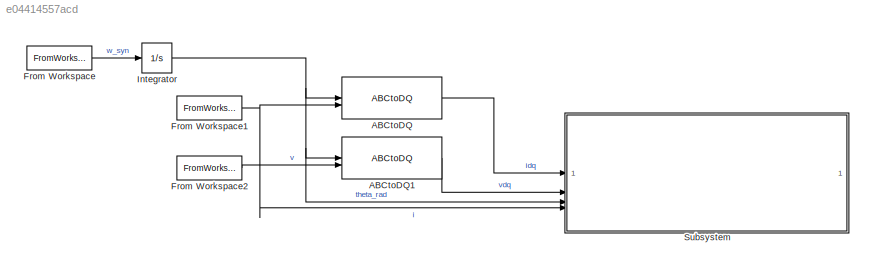
MODEL slx_e04414557acd
KIND model
CONFIG AbsTol = auto
CONFIG EnableMultiTasking = off
CONFIG FixedStep = auto
CONFIG MaxStep = simu.dt
CONFIG MinStep = auto
CONFIG RelTol = 1e-3
CONFIG SampleTimeConstraint = Unconstrained
CONFIG SolverName = VariableStepAuto
CONFIG StartTime = 0.0
CONFIG StopTime = simu.endTime
BLOCK [Reference] ABCtoDQ  REF=WECSim_Lib_PTOSim/Electric/Direct Drive Linear Generator/ABCtoDQ
  SourceBlock = WECSim_Lib_PTOSim/Electric/Direct Drive Linear Generator/ABCtoDQ
  SourceType = SubSystem
BLOCK [Reference] ABCtoDQ1  REF=WECSim_Lib_PTOSim/Electric/Direct Drive Linear Generator/ABCtoDQ
  SourceBlock = WECSim_Lib_PTOSim/Electric/Direct Drive Linear Generator/ABCtoDQ
  SourceType = SubSystem
BLOCK [FromWorkspace] From Workspace
  VariableName = omega
BLOCK [FromWorkspace] From Workspace1
  VariableName = i_s
BLOCK [FromWorkspace] From Workspace2
  VariableName = v_s
BLOCK [Integrator] Integrator
  WrappedStateLowerValue = 0
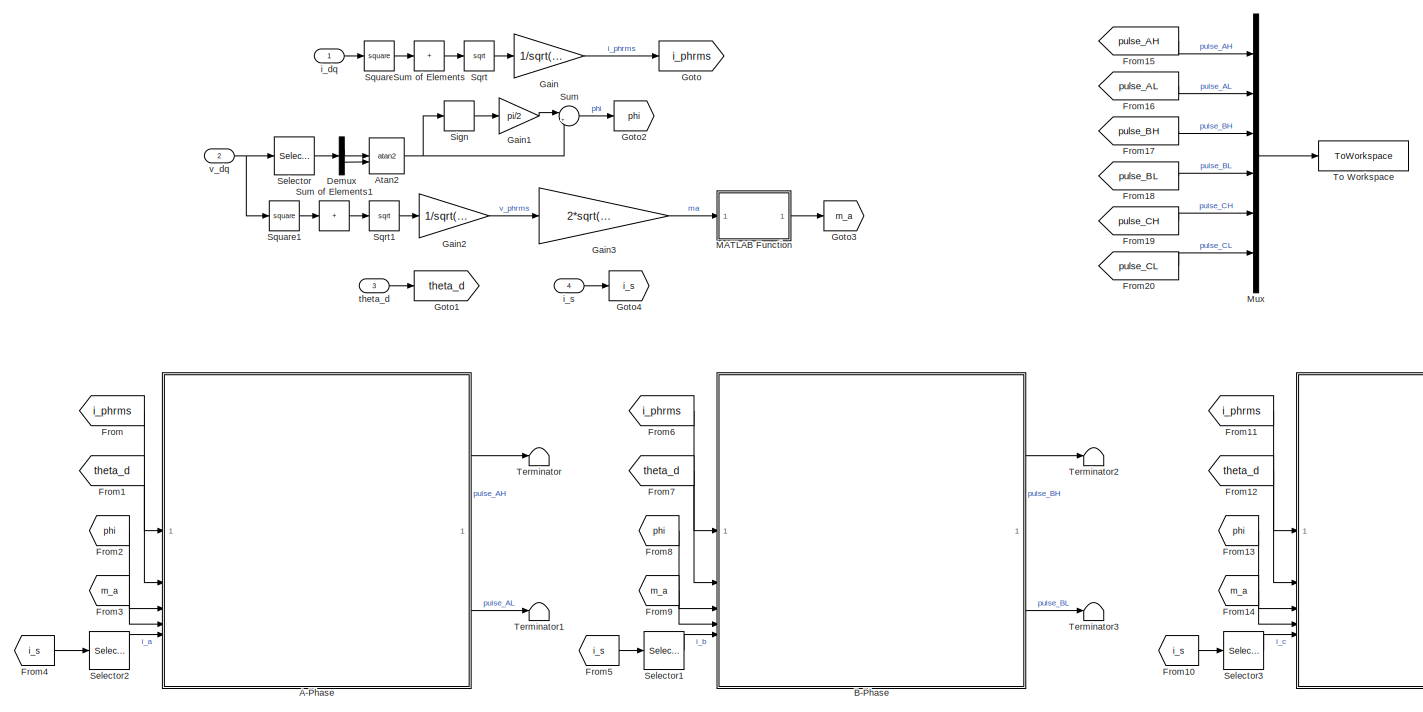
[diagram: Subsystem - part 1/2, most of the canvas]
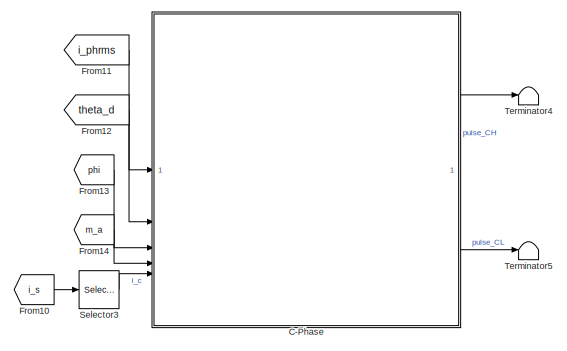
[diagram: Subsystem - part 2/2, bottom right region]
BLOCK [SubSystem] Subsystem
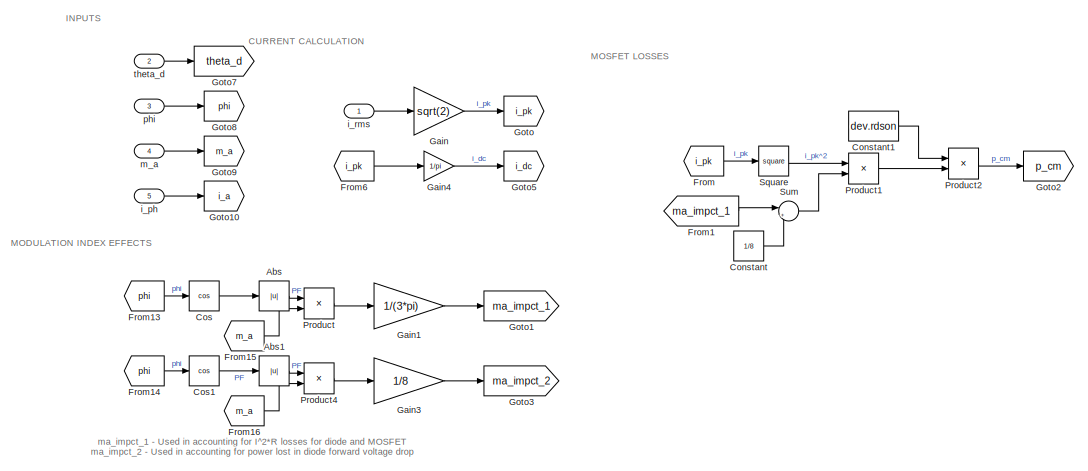
[diagram: Subsystem/A-Phase - part 1/2, middle left region]
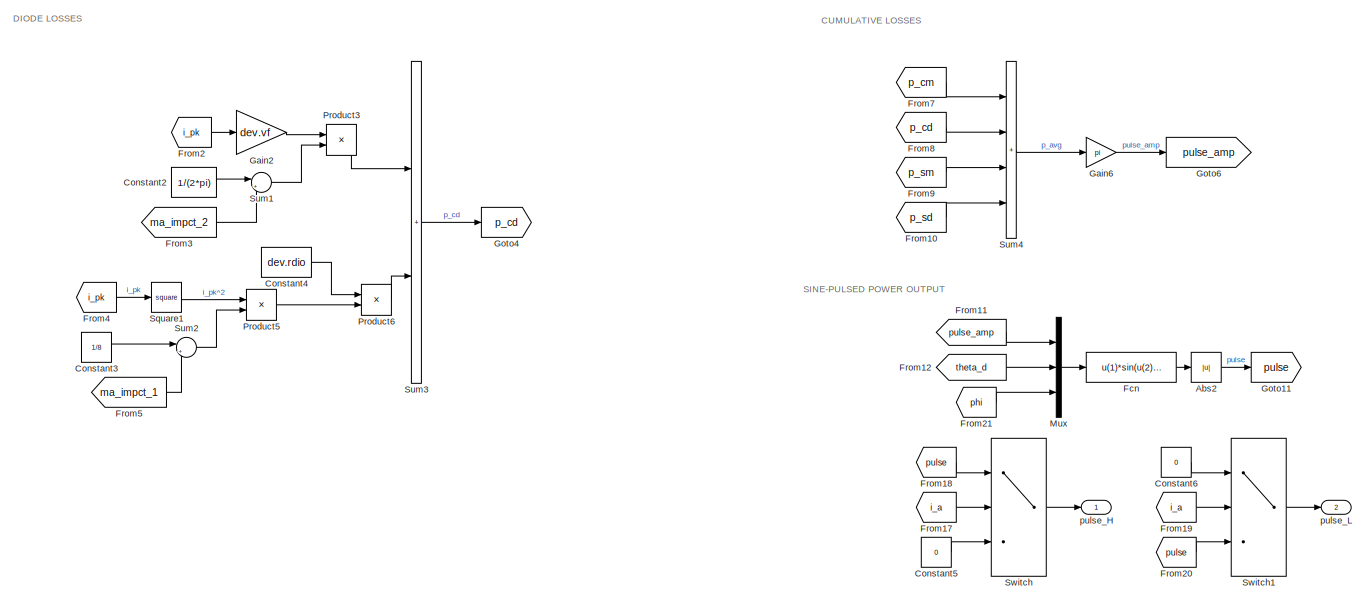
[diagram: Subsystem/A-Phase - part 2/2, right side, full height]
BLOCK [SubSystem] Subsystem/A-Phase
  AncestorBlock = MPModeling_MOSFETConv_lib/MOSFET 2L VSC/Device 1
BLOCK [Abs] Subsystem/A-Phase/Abs
  Commented = through
  SaturateOnIntegerOverflow = off
BLOCK [Abs] Subsystem/A-Phase/Abs1
  Commented = through
  SaturateOnIntegerOverflow = off
BLOCK [Abs] Subsystem/A-Phase/Abs2
  SaturateOnIntegerOverflow = off
BLOCK [Constant] Subsystem/A-Phase/Constant
  Value = 1/8
BLOCK [Constant] Subsystem/A-Phase/Constant1
  Value = dev.rdson
BLOCK [Constant] Subsystem/A-Phase/Constant2
  Value = 1/(2*pi)
BLOCK [Constant] Subsystem/A-Phase/Constant3
  Value = 1/8
BLOCK [Constant] Subsystem/A-Phase/Constant4
  Value = dev.rdio
BLOCK [Constant] Subsystem/A-Phase/Constant5
  Value = 0
BLOCK [Constant] Subsystem/A-Phase/Constant6
  Value = 0
BLOCK [Trigonometry] Subsystem/A-Phase/Cos
  Operator = cos
BLOCK [Trigonometry] Subsystem/A-Phase/Cos1
  Operator = cos
BLOCK [Fcn] Subsystem/A-Phase/Fcn
  Expr = u(1)*sin(u(2)+u(3))
BLOCK [From] Subsystem/A-Phase/From
  GotoTag = i_pk
BLOCK [From] Subsystem/A-Phase/From1
  GotoTag = ma_impct_1
BLOCK [From] Subsystem/A-Phase/From10
  GotoTag = p_sd
BLOCK [From] Subsystem/A-Phase/From11
  GotoTag = pulse_amp
BLOCK [From] Subsystem/A-Phase/From12
  GotoTag = theta_d
BLOCK [From] Subsystem/A-Phase/From13
  GotoTag = phi
BLOCK [From] Subsystem/A-Phase/From14
  GotoTag = phi
BLOCK [From] Subsystem/A-Phase/From15
  GotoTag = m_a
BLOCK [From] Subsystem/A-Phase/From16
  GotoTag = m_a
BLOCK [From] Subsystem/A-Phase/From17
  GotoTag = i_a
BLOCK [From] Subsystem/A-Phase/From18
  GotoTag = pulse
BLOCK [From] Subsystem/A-Phase/From19
  GotoTag = i_a
BLOCK [From] Subsystem/A-Phase/From2
  GotoTag = i_pk
BLOCK [From] Subsystem/A-Phase/From20
  GotoTag = pulse
BLOCK [From] Subsystem/A-Phase/From21
  GotoTag = phi
BLOCK [From] Subsystem/A-Phase/From3
  GotoTag = ma_impct_2
BLOCK [From] Subsystem/A-Phase/From4
  GotoTag = i_pk
BLOCK [From] Subsystem/A-Phase/From5
  GotoTag = ma_impct_1
BLOCK [From] Subsystem/A-Phase/From6
  GotoTag = i_pk
BLOCK [From] Subsystem/A-Phase/From7
  GotoTag = p_cm
BLOCK [From] Subsystem/A-Phase/From8
  GotoTag = p_cd
BLOCK [From] Subsystem/A-Phase/From9
  GotoTag = p_sm
BLOCK [Gain] Subsystem/A-Phase/Gain
  Gain = sqrt(2)
BLOCK [Gain] Subsystem/A-Phase/Gain1
  Gain = 1/(3*pi)
BLOCK [Gain] Subsystem/A-Phase/Gain2
  Gain = dev.vf
BLOCK [Gain] Subsystem/A-Phase/Gain3
  Gain = 1/8
BLOCK [Gain] Subsystem/A-Phase/Gain4
  Gain = 1/pi
BLOCK [Gain] Subsystem/A-Phase/Gain6
  Gain = pi
BLOCK [Goto] Subsystem/A-Phase/Goto
  GotoTag = i_pk
BLOCK [Goto] Subsystem/A-Phase/Goto1
  GotoTag = ma_impct_1
BLOCK [Goto] Subsystem/A-Phase/Goto10
  GotoTag = i_a
BLOCK [Goto] Subsystem/A-Phase/Goto11
  GotoTag = pulse
BLOCK [Goto] Subsystem/A-Phase/Goto2
  GotoTag = p_cm
BLOCK [Goto] Subsystem/A-Phase/Goto3
  GotoTag = ma_impct_2
BLOCK [Goto] Subsystem/A-Phase/Goto4
  GotoTag = p_cd
BLOCK [Goto] Subsystem/A-Phase/Goto5
  GotoTag = i_dc
BLOCK [Goto] Subsystem/A-Phase/Goto6
  GotoTag = pulse_amp
BLOCK [Goto] Subsystem/A-Phase/Goto7
  GotoTag = theta_d
BLOCK [Goto] Subsystem/A-Phase/Goto8
  GotoTag = phi
BLOCK [Goto] Subsystem/A-Phase/Goto9
  GotoTag = m_a
BLOCK [Mux] Subsystem/A-Phase/Mux
  DisplayOption = bar
  Inputs = 3
BLOCK [Product] Subsystem/A-Phase/Product
BLOCK [Product] Subsystem/A-Phase/Product1
BLOCK [Product] Subsystem/A-Phase/Product2
BLOCK [Product] Subsystem/A-Phase/Product3
BLOCK [Product] Subsystem/A-Phase/Product4
BLOCK [Product] Subsystem/A-Phase/Product5
BLOCK [Product] Subsystem/A-Phase/Product6
BLOCK [Math] Subsystem/A-Phase/Square
  Operator = square
BLOCK [Math] Subsystem/A-Phase/Square1
  Operator = square
BLOCK [Sum] Subsystem/A-Phase/Sum
  Inputs = |++
BLOCK [Sum] Subsystem/A-Phase/Sum1
  Inputs = |+-
BLOCK [Sum] Subsystem/A-Phase/Sum2
  Inputs = |+-
BLOCK [Sum] Subsystem/A-Phase/Sum3
  IconShape = rectangular
BLOCK [Sum] Subsystem/A-Phase/Sum4
  IconShape = rectangular
  Inputs = ++++
BLOCK [Switch] Subsystem/A-Phase/Switch
  Criteria = u2 > Threshold
  InputSameDT = off
  SaturateOnIntegerOverflow = off
BLOCK [Switch] Subsystem/A-Phase/Switch1
  Criteria = u2 > Threshold
  InputSameDT = off
  SaturateOnIntegerOverflow = off
BLOCK [Inport] Subsystem/A-Phase/i_ph
  Port = 5
BLOCK [Inport] Subsystem/A-Phase/i_rms
BLOCK [Inport] Subsystem/A-Phase/m_a
  Port = 4
BLOCK [Inport] Subsystem/A-Phase/phi
  Port = 3
BLOCK [Outport] Subsystem/A-Phase/pulse_H
BLOCK [Outport] Subsystem/A-Phase/pulse_L
  Port = 2
BLOCK [Inport] Subsystem/A-Phase/theta_d
  Port = 2
BLOCK [Trigonometry] Subsystem/Atan2
  Operator = atan2
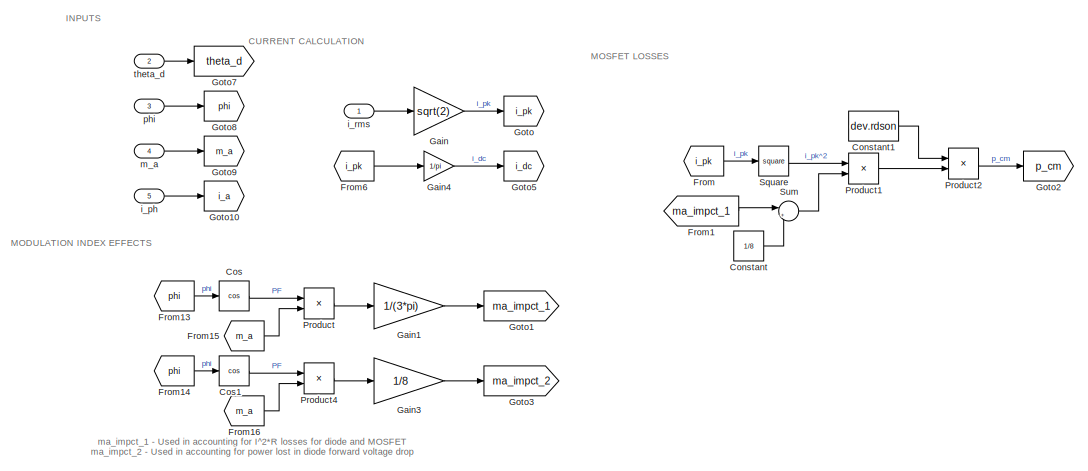
[diagram: Subsystem/B-Phase - part 1/2, middle left region]
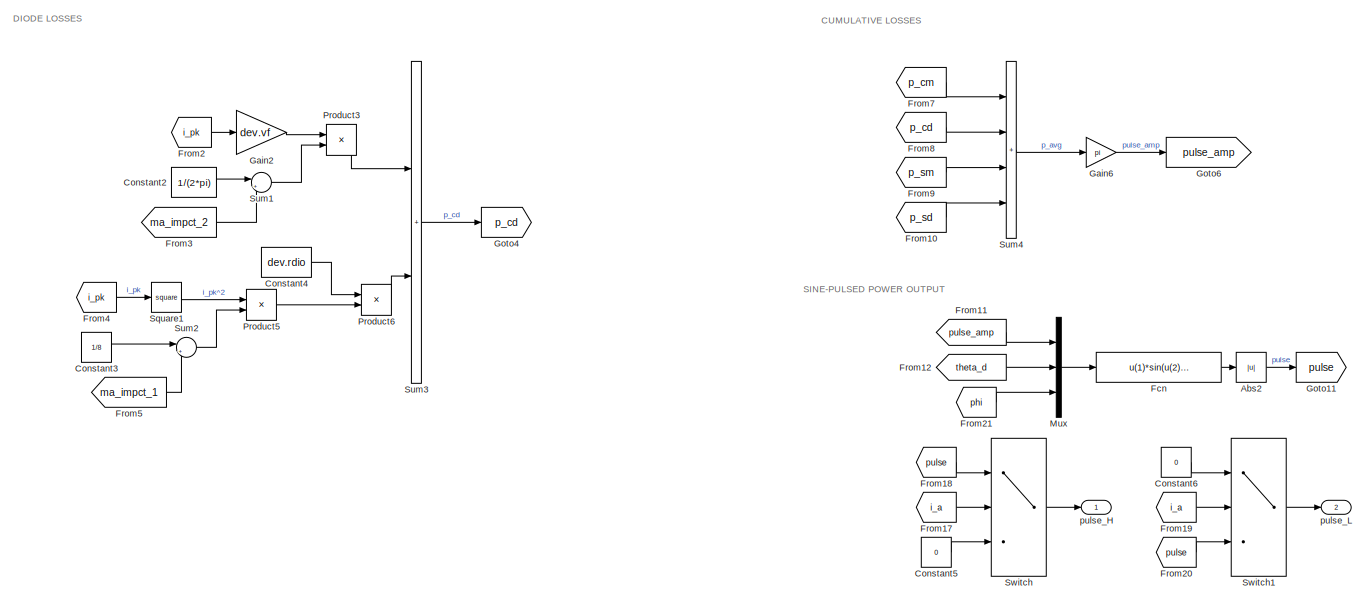
[diagram: Subsystem/B-Phase - part 2/2, right side, full height]
BLOCK [SubSystem] Subsystem/B-Phase
  AncestorBlock = MPModeling_MOSFETConv_lib/MOSFET 2L VSC/Device 1
BLOCK [Abs] Subsystem/B-Phase/Abs2
  SaturateOnIntegerOverflow = off
BLOCK [Constant] Subsystem/B-Phase/Constant
  Value = 1/8
BLOCK [Constant] Subsystem/B-Phase/Constant1
  Value = dev.rdson
BLOCK [Constant] Subsystem/B-Phase/Constant2
  Value = 1/(2*pi)
BLOCK [Constant] Subsystem/B-Phase/Constant3
  Value = 1/8
BLOCK [Constant] Subsystem/B-Phase/Constant4
  Value = dev.rdio
BLOCK [Constant] Subsystem/B-Phase/Constant5
  Value = 0
BLOCK [Constant] Subsystem/B-Phase/Constant6
  Value = 0
BLOCK [Trigonometry] Subsystem/B-Phase/Cos
  Operator = cos
BLOCK [Trigonometry] Subsystem/B-Phase/Cos1
  Operator = cos
BLOCK [Fcn] Subsystem/B-Phase/Fcn
  Expr = u(1)*sin(u(2)-2*pi/3+u(3))
BLOCK [From] Subsystem/B-Phase/From
  GotoTag = i_pk
BLOCK [From] Subsystem/B-Phase/From1
  GotoTag = ma_impct_1
BLOCK [From] Subsystem/B-Phase/From10
  GotoTag = p_sd
BLOCK [From] Subsystem/B-Phase/From11
  GotoTag = pulse_amp
BLOCK [From] Subsystem/B-Phase/From12
  GotoTag = theta_d
BLOCK [From] Subsystem/B-Phase/From13
  GotoTag = phi
BLOCK [From] Subsystem/B-Phase/From14
  GotoTag = phi
BLOCK [From] Subsystem/B-Phase/From15
  GotoTag = m_a
BLOCK [From] Subsystem/B-Phase/From16
  GotoTag = m_a
BLOCK [From] Subsystem/B-Phase/From17
  GotoTag = i_a
BLOCK [From] Subsystem/B-Phase/From18
  GotoTag = pulse
BLOCK [From] Subsystem/B-Phase/From19
  GotoTag = i_a
BLOCK [From] Subsystem/B-Phase/From2
  GotoTag = i_pk
BLOCK [From] Subsystem/B-Phase/From20
  GotoTag = pulse
BLOCK [From] Subsystem/B-Phase/From21
  GotoTag = phi
BLOCK [From] Subsystem/B-Phase/From3
  GotoTag = ma_impct_2
BLOCK [From] Subsystem/B-Phase/From4
  GotoTag = i_pk
BLOCK [From] Subsystem/B-Phase/From5
  GotoTag = ma_impct_1
BLOCK [From] Subsystem/B-Phase/From6
  GotoTag = i_pk
BLOCK [From] Subsystem/B-Phase/From7
  GotoTag = p_cm
BLOCK [From] Subsystem/B-Phase/From8
  GotoTag = p_cd
BLOCK [From] Subsystem/B-Phase/From9
  GotoTag = p_sm
BLOCK [Gain] Subsystem/B-Phase/Gain
  Gain = sqrt(2)
BLOCK [Gain] Subsystem/B-Phase/Gain1
  Gain = 1/(3*pi)
BLOCK [Gain] Subsystem/B-Phase/Gain2
  Gain = dev.vf
BLOCK [Gain] Subsystem/B-Phase/Gain3
  Gain = 1/8
BLOCK [Gain] Subsystem/B-Phase/Gain4
  Gain = 1/pi
BLOCK [Gain] Subsystem/B-Phase/Gain6
  Gain = pi
BLOCK [Goto] Subsystem/B-Phase/Goto
  GotoTag = i_pk
BLOCK [Goto] Subsystem/B-Phase/Goto1
  GotoTag = ma_impct_1
BLOCK [Goto] Subsystem/B-Phase/Goto10
  GotoTag = i_a
BLOCK [Goto] Subsystem/B-Phase/Goto11
  GotoTag = pulse
BLOCK [Goto] Subsystem/B-Phase/Goto2
  GotoTag = p_cm
BLOCK [Goto] Subsystem/B-Phase/Goto3
  GotoTag = ma_impct_2
BLOCK [Goto] Subsystem/B-Phase/Goto4
  GotoTag = p_cd
BLOCK [Goto] Subsystem/B-Phase/Goto5
  GotoTag = i_dc
BLOCK [Goto] Subsystem/B-Phase/Goto6
  GotoTag = pulse_amp
BLOCK [Goto] Subsystem/B-Phase/Goto7
  GotoTag = theta_d
BLOCK [Goto] Subsystem/B-Phase/Goto8
  GotoTag = phi
BLOCK [Goto] Subsystem/B-Phase/Goto9
  GotoTag = m_a
BLOCK [Mux] Subsystem/B-Phase/Mux
  DisplayOption = bar
  Inputs = 3
BLOCK [Product] Subsystem/B-Phase/Product
BLOCK [Product] Subsystem/B-Phase/Product1
BLOCK [Product] Subsystem/B-Phase/Product2
BLOCK [Product] Subsystem/B-Phase/Product3
BLOCK [Product] Subsystem/B-Phase/Product4
BLOCK [Product] Subsystem/B-Phase/Product5
BLOCK [Product] Subsystem/B-Phase/Product6
BLOCK [Math] Subsystem/B-Phase/Square
  Operator = square
BLOCK [Math] Subsystem/B-Phase/Square1
  Operator = square
BLOCK [Sum] Subsystem/B-Phase/Sum
  Inputs = |++
BLOCK [Sum] Subsystem/B-Phase/Sum1
  Inputs = |+-
BLOCK [Sum] Subsystem/B-Phase/Sum2
  Inputs = |+-
BLOCK [Sum] Subsystem/B-Phase/Sum3
  IconShape = rectangular
BLOCK [Sum] Subsystem/B-Phase/Sum4
  IconShape = rectangular
  Inputs = ++++
BLOCK [Switch] Subsystem/B-Phase/Switch
  Criteria = u2 > Threshold
  InputSameDT = off
  SaturateOnIntegerOverflow = off
BLOCK [Switch] Subsystem/B-Phase/Switch1
  Criteria = u2 > Threshold
  InputSameDT = off
  SaturateOnIntegerOverflow = off
BLOCK [Inport] Subsystem/B-Phase/i_ph
  Port = 5
BLOCK [Inport] Subsystem/B-Phase/i_rms
BLOCK [Inport] Subsystem/B-Phase/m_a
  Port = 4
BLOCK [Inport] Subsystem/B-Phase/phi
  Port = 3
BLOCK [Outport] Subsystem/B-Phase/pulse_H
BLOCK [Outport] Subsystem/B-Phase/pulse_L
  Port = 2
BLOCK [Inport] Subsystem/B-Phase/theta_d
  Port = 2
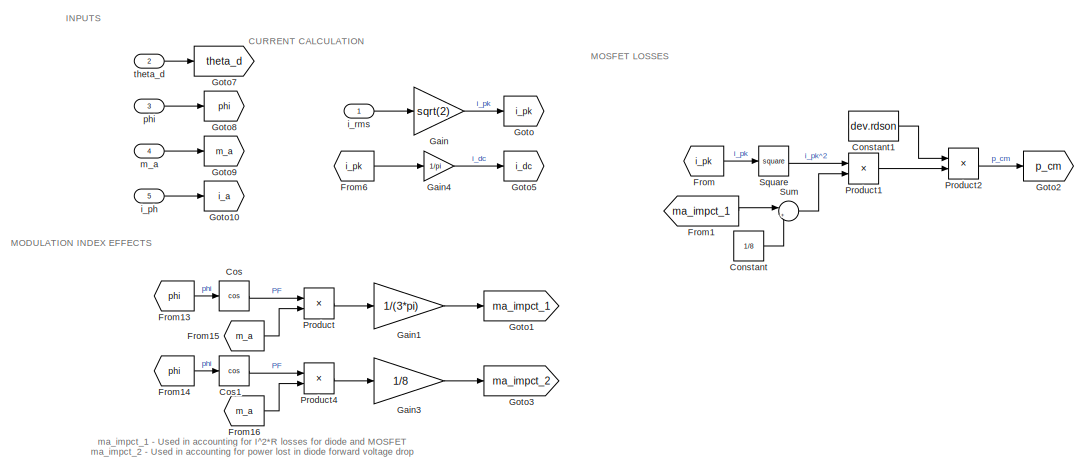
[diagram: Subsystem/C-Phase - part 1/2, middle left region]
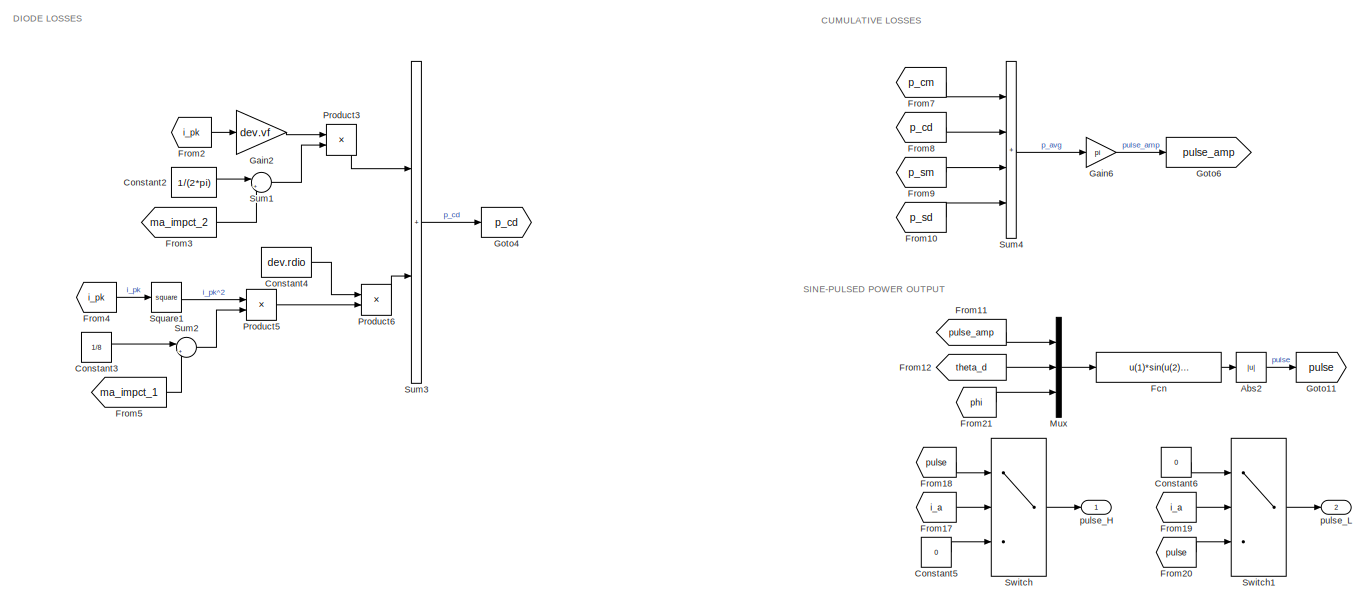
[diagram: Subsystem/C-Phase - part 2/2, right side, full height]
BLOCK [SubSystem] Subsystem/C-Phase
  AncestorBlock = MPModeling_MOSFETConv_lib/MOSFET 2L VSC/Device 1
BLOCK [Abs] Subsystem/C-Phase/Abs2
  SaturateOnIntegerOverflow = off
BLOCK [Constant] Subsystem/C-Phase/Constant
  Value = 1/8
BLOCK [Constant] Subsystem/C-Phase/Constant1
  Value = dev.rdson
BLOCK [Constant] Subsystem/C-Phase/Constant2
  Value = 1/(2*pi)
BLOCK [Constant] Subsystem/C-Phase/Constant3
  Value = 1/8
BLOCK [Constant] Subsystem/C-Phase/Constant4
  Value = dev.rdio
BLOCK [Constant] Subsystem/C-Phase/Constant5
  Value = 0
BLOCK [Constant] Subsystem/C-Phase/Constant6
  Value = 0
BLOCK [Trigonometry] Subsystem/C-Phase/Cos
  Operator = cos
BLOCK [Trigonometry] Subsystem/C-Phase/Cos1
  Operator = cos
BLOCK [Fcn] Subsystem/C-Phase/Fcn
  Expr = u(1)*sin(u(2)+2*pi/3+u(3))
BLOCK [From] Subsystem/C-Phase/From
  GotoTag = i_pk
BLOCK [From] Subsystem/C-Phase/From1
  GotoTag = ma_impct_1
BLOCK [From] Subsystem/C-Phase/From10
  GotoTag = p_sd
BLOCK [From] Subsystem/C-Phase/From11
  GotoTag = pulse_amp
BLOCK [From] Subsystem/C-Phase/From12
  GotoTag = theta_d
BLOCK [From] Subsystem/C-Phase/From13
  GotoTag = phi
BLOCK [From] Subsystem/C-Phase/From14
  GotoTag = phi
BLOCK [From] Subsystem/C-Phase/From15
  GotoTag = m_a
BLOCK [From] Subsystem/C-Phase/From16
  GotoTag = m_a
BLOCK [From] Subsystem/C-Phase/From17
  GotoTag = i_a
BLOCK [From] Subsystem/C-Phase/From18
  GotoTag = pulse
BLOCK [From] Subsystem/C-Phase/From19
  GotoTag = i_a
BLOCK [From] Subsystem/C-Phase/From2
  GotoTag = i_pk
BLOCK [From] Subsystem/C-Phase/From20
  GotoTag = pulse
BLOCK [From] Subsystem/C-Phase/From21
  GotoTag = phi
BLOCK [From] Subsystem/C-Phase/From3
  GotoTag = ma_impct_2
BLOCK [From] Subsystem/C-Phase/From4
  GotoTag = i_pk
BLOCK [From] Subsystem/C-Phase/From5
  GotoTag = ma_impct_1
BLOCK [From] Subsystem/C-Phase/From6
  GotoTag = i_pk
BLOCK [From] Subsystem/C-Phase/From7
  GotoTag = p_cm
BLOCK [From] Subsystem/C-Phase/From8
  GotoTag = p_cd
BLOCK [From] Subsystem/C-Phase/From9
  GotoTag = p_sm
BLOCK [Gain] Subsystem/C-Phase/Gain
  Gain = sqrt(2)
BLOCK [Gain] Subsystem/C-Phase/Gain1
  Gain = 1/(3*pi)
BLOCK [Gain] Subsystem/C-Phase/Gain2
  Gain = dev.vf
BLOCK [Gain] Subsystem/C-Phase/Gain3
  Gain = 1/8
BLOCK [Gain] Subsystem/C-Phase/Gain4
  Gain = 1/pi
BLOCK [Gain] Subsystem/C-Phase/Gain6
  Gain = pi
BLOCK [Goto] Subsystem/C-Phase/Goto
  GotoTag = i_pk
BLOCK [Goto] Subsystem/C-Phase/Goto1
  GotoTag = ma_impct_1
BLOCK [Goto] Subsystem/C-Phase/Goto10
  GotoTag = i_a
BLOCK [Goto] Subsystem/C-Phase/Goto11
  GotoTag = pulse
BLOCK [Goto] Subsystem/C-Phase/Goto2
  GotoTag = p_cm
BLOCK [Goto] Subsystem/C-Phase/Goto3
  GotoTag = ma_impct_2
BLOCK [Goto] Subsystem/C-Phase/Goto4
  GotoTag = p_cd
BLOCK [Goto] Subsystem/C-Phase/Goto5
  GotoTag = i_dc
BLOCK [Goto] Subsystem/C-Phase/Goto6
  GotoTag = pulse_amp
BLOCK [Goto] Subsystem/C-Phase/Goto7
  GotoTag = theta_d
BLOCK [Goto] Subsystem/C-Phase/Goto8
  GotoTag = phi
BLOCK [Goto] Subsystem/C-Phase/Goto9
  GotoTag = m_a
BLOCK [Mux] Subsystem/C-Phase/Mux
  DisplayOption = bar
  Inputs = 3
BLOCK [Product] Subsystem/C-Phase/Product
BLOCK [Product] Subsystem/C-Phase/Product1
BLOCK [Product] Subsystem/C-Phase/Product2
BLOCK [Product] Subsystem/C-Phase/Product3
BLOCK [Product] Subsystem/C-Phase/Product4
BLOCK [Product] Subsystem/C-Phase/Product5
BLOCK [Product] Subsystem/C-Phase/Product6
BLOCK [Math] Subsystem/C-Phase/Square
  Operator = square
BLOCK [Math] Subsystem/C-Phase/Square1
  Operator = square
BLOCK [Sum] Subsystem/C-Phase/Sum
  Inputs = |++
BLOCK [Sum] Subsystem/C-Phase/Sum1
  Inputs = |+-
BLOCK [Sum] Subsystem/C-Phase/Sum2
  Inputs = |+-
BLOCK [Sum] Subsystem/C-Phase/Sum3
  IconShape = rectangular
BLOCK [Sum] Subsystem/C-Phase/Sum4
  IconShape = rectangular
  Inputs = ++++
BLOCK [Switch] Subsystem/C-Phase/Switch
  Criteria = u2 > Threshold
  InputSameDT = off
  SaturateOnIntegerOverflow = off
BLOCK [Switch] Subsystem/C-Phase/Switch1
  Criteria = u2 > Threshold
  InputSameDT = off
  SaturateOnIntegerOverflow = off
BLOCK [Inport] Subsystem/C-Phase/i_ph
  Port = 5
BLOCK [Inport] Subsystem/C-Phase/i_rms
BLOCK [Inport] Subsystem/C-Phase/m_a
  Port = 4
BLOCK [Inport] Subsystem/C-Phase/phi
  Port = 3
BLOCK [Outport] Subsystem/C-Phase/pulse_H
BLOCK [Outport] Subsystem/C-Phase/pulse_L
  Port = 2
BLOCK [Inport] Subsystem/C-Phase/theta_d
  Port = 2
BLOCK [Demux] Subsystem/Demux
  Outputs = 2
BLOCK [From] Subsystem/From
  GotoTag = i_phrms
BLOCK [From] Subsystem/From1
  GotoTag = theta_d
BLOCK [From] Subsystem/From10
  GotoTag = i_s
BLOCK [From] Subsystem/From11
  GotoTag = i_phrms
BLOCK [From] Subsystem/From12
  GotoTag = theta_d
BLOCK [From] Subsystem/From13
  GotoTag = phi
BLOCK [From] Subsystem/From14
  GotoTag = m_a
BLOCK [From] Subsystem/From15
  Commented = on
  GotoTag = pulse_AH
BLOCK [From] Subsystem/From16
  Commented = on
  GotoTag = pulse_AL
BLOCK [From] Subsystem/From17
  Commented = on
  GotoTag = pulse_BH
BLOCK [From] Subsystem/From18
  Commented = on
  GotoTag = pulse_BL
BLOCK [From] Subsystem/From19
  Commented = on
  GotoTag = pulse_CH
BLOCK [From] Subsystem/From2
  GotoTag = phi
BLOCK [From] Subsystem/From20
  Commented = on
  GotoTag = pulse_CL
BLOCK [From] Subsystem/From3
  GotoTag = m_a
BLOCK [From] Subsystem/From4
  GotoTag = i_s
BLOCK [From] Subsystem/From5
  GotoTag = i_s
BLOCK [From] Subsystem/From6
  GotoTag = i_phrms
BLOCK [From] Subsystem/From7
  GotoTag = theta_d
BLOCK [From] Subsystem/From8
  GotoTag = phi
BLOCK [From] Subsystem/From9
  GotoTag = m_a
BLOCK [Gain] Subsystem/Gain
  Gain = 1/sqrt(3)
BLOCK [Gain] Subsystem/Gain1
  Gain = pi/2
BLOCK [Gain] Subsystem/Gain2
  Gain = 1/sqrt(3)
BLOCK [Gain] Subsystem/Gain3
  Gain = 2*sqrt(2)/conv.vdc
BLOCK [Goto] Subsystem/Goto
  GotoTag = i_phrms
BLOCK [Goto] Subsystem/Goto1
  GotoTag = theta_d
BLOCK [Goto] Subsystem/Goto2
  GotoTag = phi
BLOCK [Goto] Subsystem/Goto3
  GotoTag = m_a
BLOCK [Goto] Subsystem/Goto4
  GotoTag = i_s
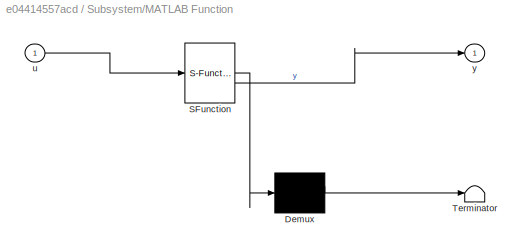
BLOCK [SubSystem] Subsystem/MATLAB Function
  ErrorFcn = Stateflow.Translate.translate
  LibrarySourceBlock = simulink/User-Defined\nFunctions/MATLAB Function
  PermitHierarchicalResolution = ExplicitOnly
  SFBlockType = MATLAB Function
  TreatAsAtomicUnit = on
BLOCK [Demux] Subsystem/MATLAB Function/ Demux 
  Outputs = 1
BLOCK [S-Function] Subsystem/MATLAB Function/ SFunction 
  EnableBusSupport = on
  FunctionName = sf_sfun
  PortCounts = [1 2]
  SFcnIsStateOwnerBlock = off
  SFunctionDeploymentMode = off
  Tag = Stateflow S-Function 2
BLOCK [Terminator] Subsystem/MATLAB Function/ Terminator 
BLOCK [Inport] Subsystem/MATLAB Function/u
BLOCK [Outport] Subsystem/MATLAB Function/y
BLOCK [Mux] Subsystem/Mux
  Commented = on
  DisplayOption = bar
  Inputs = 6
BLOCK [Selector] Subsystem/Selector
  IndexOptions = Index vector (dialog)
  Indices = [2 1]
  InputPortWidth = 2
  OutputSizes = 1
BLOCK [Selector] Subsystem/Selector1
  IndexOptions = Index vector (dialog)
  Indices = 2
  InputPortWidth = 3
  OutputSizes = 1
BLOCK [Selector] Subsystem/Selector2
  IndexOptions = Index vector (dialog)
  Indices = 1
  InputPortWidth = 3
  OutputSizes = 1
BLOCK [Selector] Subsystem/Selector3
  IndexOptions = Index vector (dialog)
  Indices = 3
  InputPortWidth = 3
  OutputSizes = 1
BLOCK [Signum] Subsystem/Sign
BLOCK [Sqrt] Subsystem/Sqrt
BLOCK [Sqrt] Subsystem/Sqrt1
BLOCK [Math] Subsystem/Square
  Operator = square
BLOCK [Math] Subsystem/Square1
  Operator = square
BLOCK [Sum] Subsystem/Sum
  Inputs = |++
BLOCK [Sum] Subsystem/Sum of Elements
  IconShape = rectangular
  Inputs = +
BLOCK [Sum] Subsystem/Sum of Elements1
  IconShape = rectangular
  Inputs = +
BLOCK [Terminator] Subsystem/Terminator
BLOCK [Terminator] Subsystem/Terminator1
BLOCK [Terminator] Subsystem/Terminator2
BLOCK [Terminator] Subsystem/Terminator3
BLOCK [Terminator] Subsystem/Terminator4
BLOCK [Terminator] Subsystem/Terminator5
BLOCK [ToWorkspace] Subsystem/To Workspace
  Commented = on
  FixptAsFi = on
  MaxDataPoints = inf
  SampleTime = -1
  SaveFormat = Timeseries
  VariableName = conv_out
BLOCK [Inport] Subsystem/i_dq
BLOCK [Inport] Subsystem/i_s
  Port = 4
BLOCK [Inport] Subsystem/theta_d
  Port = 3
BLOCK [Inport] Subsystem/v_dq
  Port = 2
ANNOTATION Subsystem/A-Phase: CUMULATIVE LOSSES
ANNOTATION Subsystem/A-Phase: CURRENT CALCULATION
ANNOTATION Subsystem/A-Phase: DIODE LOSSES
ANNOTATION Subsystem/A-Phase: INPUTS
ANNOTATION Subsystem/A-Phase: MODULATION INDEX EFFECTS
ANNOTATION Subsystem/A-Phase: MOSFET LOSSES
ANNOTATION Subsystem/A-Phase: SINE-PULSED POWER OUTPUT
ANNOTATION Subsystem/A-Phase: ma_impct_1 - Used in accounting for I^2*R losses for diode and MOSFET ma_impct_2 - Used in accounting for power lost in diode forward voltage drop
ANNOTATION Subsystem/B-Phase: CUMULATIVE LOSSES
ANNOTATION Subsystem/B-Phase: CURRENT CALCULATION
ANNOTATION Subsystem/B-Phase: DIODE LOSSES
ANNOTATION Subsystem/B-Phase: INPUTS
ANNOTATION Subsystem/B-Phase: MODULATION INDEX EFFECTS
ANNOTATION Subsystem/B-Phase: MOSFET LOSSES
ANNOTATION Subsystem/B-Phase: SINE-PULSED POWER OUTPUT
ANNOTATION Subsystem/B-Phase: ma_impct_1 - Used in accounting for I^2*R losses for diode and MOSFET ma_impct_2 - Used in accounting for power lost in diode forward voltage drop
ANNOTATION Subsystem/C-Phase: CUMULATIVE LOSSES
ANNOTATION Subsystem/C-Phase: CURRENT CALCULATION
ANNOTATION Subsystem/C-Phase: DIODE LOSSES
ANNOTATION Subsystem/C-Phase: INPUTS
ANNOTATION Subsystem/C-Phase: MODULATION INDEX EFFECTS
ANNOTATION Subsystem/C-Phase: MOSFET LOSSES
ANNOTATION Subsystem/C-Phase: SINE-PULSED POWER OUTPUT
ANNOTATION Subsystem/C-Phase: ma_impct_1 - Used in accounting for I^2*R losses for diode and MOSFET ma_impct_2 - Used in accounting for power lost in diode forward voltage drop
LINE ABCtoDQ1:1 -> Subsystem:2
LINE ABCtoDQ:1 -> Subsystem:1
NET From Workspace1:1 -> ABCtoDQ:2, Subsystem:4
LINE From Workspace2:1 -> ABCtoDQ1:2
LINE From Workspace:1 -> Integrator:1
NET Integrator:1 -> ABCtoDQ1:1, ABCtoDQ:1, Subsystem:3
LINE Subsystem/A-Phase:1 -> Subsystem/Terminator:1
LINE Subsystem/A-Phase:2 -> Subsystem/Terminator1:1
NET Subsystem/Atan2:1 -> Subsystem/Sign:1, Subsystem/Sum:2
LINE Subsystem/B-Phase:1 -> Subsystem/Terminator2:1
LINE Subsystem/B-Phase:2 -> Subsystem/Terminator3:1
LINE Subsystem/C-Phase:1 -> Subsystem/Terminator4:1
LINE Subsystem/C-Phase:2 -> Subsystem/Terminator5:1
LINE Subsystem/Demux:1 -> Subsystem/Atan2:1
LINE Subsystem/Demux:2 -> Subsystem/Atan2:2
LINE Subsystem/From10:1 -> Subsystem/Selector3:1
LINE Subsystem/From11:1 -> Subsystem/C-Phase:1
LINE Subsystem/From12:1 -> Subsystem/C-Phase:2
LINE Subsystem/From13:1 -> Subsystem/C-Phase:3
LINE Subsystem/From14:1 -> Subsystem/C-Phase:4
LINE Subsystem/From15:1 -> Subsystem/Mux:1
LINE Subsystem/From16:1 -> Subsystem/Mux:2
LINE Subsystem/From17:1 -> Subsystem/Mux:3
LINE Subsystem/From18:1 -> Subsystem/Mux:4
LINE Subsystem/From19:1 -> Subsystem/Mux:5
LINE Subsystem/From1:1 -> Subsystem/A-Phase:2
LINE Subsystem/From20:1 -> Subsystem/Mux:6
LINE Subsystem/From2:1 -> Subsystem/A-Phase:3
LINE Subsystem/From3:1 -> Subsystem/A-Phase:4
LINE Subsystem/From4:1 -> Subsystem/Selector2:1
LINE Subsystem/From5:1 -> Subsystem/Selector1:1
LINE Subsystem/From6:1 -> Subsystem/B-Phase:1
LINE Subsystem/From7:1 -> Subsystem/B-Phase:2
LINE Subsystem/From8:1 -> Subsystem/B-Phase:3
LINE Subsystem/From9:1 -> Subsystem/B-Phase:4
LINE Subsystem/From:1 -> Subsystem/A-Phase:1
LINE Subsystem/Gain1:1 -> Subsystem/Sum:1
LINE Subsystem/Gain2:1 -> Subsystem/Gain3:1
LINE Subsystem/Gain3:1 -> Subsystem/MATLAB Function:1
LINE Subsystem/Gain:1 -> Subsystem/Goto:1
LINE Subsystem/MATLAB Function:1 -> Subsystem/Goto3:1
LINE Subsystem/Mux:1 -> Subsystem/To Workspace:1
LINE Subsystem/Selector1:1 -> Subsystem/B-Phase:5
LINE Subsystem/Selector2:1 -> Subsystem/A-Phase:5
LINE Subsystem/Selector3:1 -> Subsystem/C-Phase:5
LINE Subsystem/Selector:1 -> Subsystem/Demux:1
LINE Subsystem/Sign:1 -> Subsystem/Gain1:1
LINE Subsystem/Sqrt1:1 -> Subsystem/Gain2:1
LINE Subsystem/Sqrt:1 -> Subsystem/Gain:1
LINE Subsystem/Square1:1 -> Subsystem/Sum of Elements1:1
LINE Subsystem/Square:1 -> Subsystem/Sum of Elements:1
LINE Subsystem/Sum of Elements1:1 -> Subsystem/Sqrt1:1
LINE Subsystem/Sum of Elements:1 -> Subsystem/Sqrt:1
LINE Subsystem/Sum:1 -> Subsystem/Goto2:1
LINE Subsystem/i_dq:1 -> Subsystem/Square:1
LINE Subsystem/i_s:1 -> Subsystem/Goto4:1
LINE Subsystem/theta_d:1 -> Subsystem/Goto1:1
NET Subsystem/v_dq:1 -> Subsystem/Selector:1, Subsystem/Square1:1
note: NET lines group one-source signal fan-out (src -> all destinations, sorted); 1:1 wires keep LINE
CHART Subsystem/MATLAB Function states=1 transitions=1
  STATE_LABEL 'eML_blk_kernel()'
  STATE_LABEL "SCRIPT:\nfunction y = checkMa(u)\n\nif u > 1\n    error('Modulation index (ma) greater than 1.');\nend\n\ny = u; \n"
CHART  states=0 transitions=0
